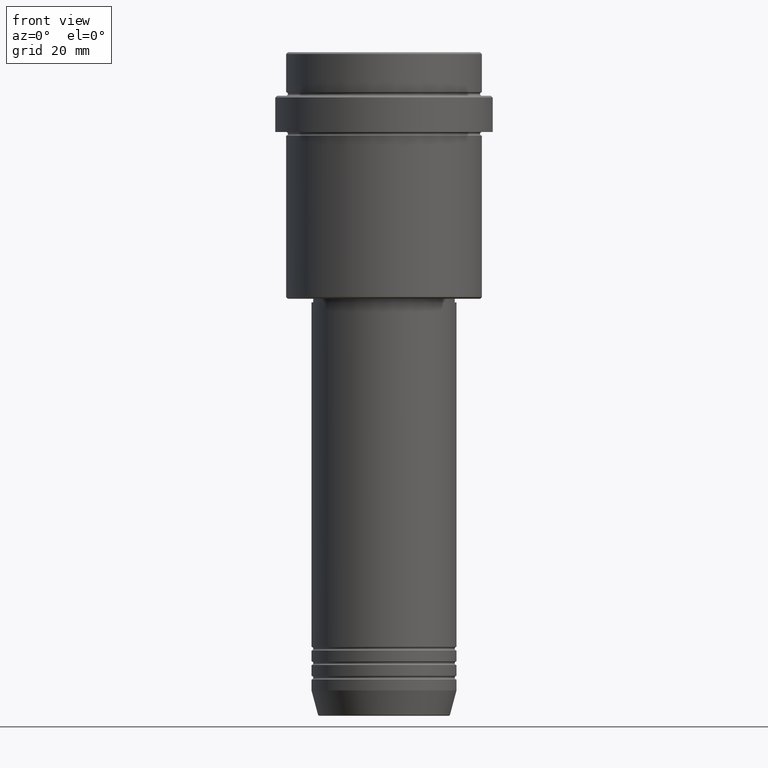
[diagram: clean part render]
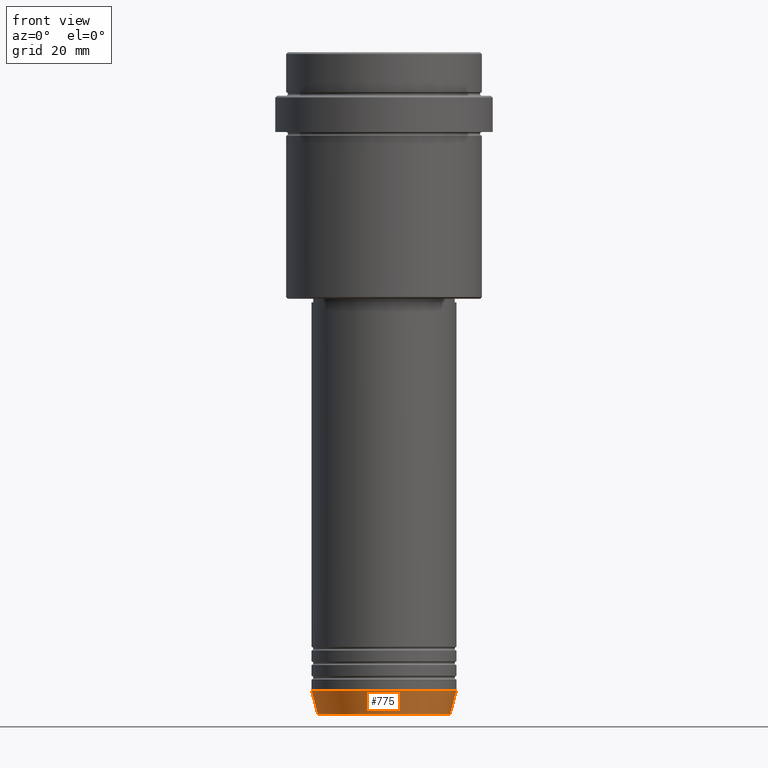
[diagram: same view with one face highlighted and labeled with its STEP entity id]
A machine part, front view. The second image highlights one B-rep face of the part: STEP entity #775.
In plain terms, the highlighted conical surface has half-angle 15 deg.
Its self-contained STEP definition (entity closure, byte-faithful):
#4 = ORIENTED_EDGE ( 'NONE', *, *, #1388, .F. ) ;
#151 = CARTESIAN_POINT ( 'NONE',  ( 0.000000000000000000, 0.000000000000000000, -176.0000000000000284 ) ) ;
#160 = EDGE_CURVE ( 'NONE', #414, #1325, #1119, .T. ) ;
#209 = DIRECTION ( 'NONE',  ( 1.000000000000000000, 0.000000000000000000, 0.000000000000000000 ) ) ;
#215 = DIRECTION ( 'NONE',  ( -0.2588190451025213501, 3.169619151431772337E-17, 0.9659258262890680902 ) ) ;
#217 = VECTOR ( 'NONE', #215, 1000.000000000000000 ) ;
#226 = ORIENTED_EDGE ( 'NONE', *, *, #160, .T. ) ;
#248 = AXIS2_PLACEMENT_3D ( 'NONE', #313, #1197, #209 ) ;
#258 = EDGE_LOOP ( 'NONE', ( #922, #369, #226, #4 ) ) ;
#284 = AXIS2_PLACEMENT_3D ( 'NONE', #151, #1039, #622 ) ;
#313 = CARTESIAN_POINT ( 'NONE',  ( 0.000000000000000000, 0.000000000000000000, -182.6294095225512706 ) ) ;
#350 = VERTEX_POINT ( 'NONE', #493 ) ;
#369 = ORIENTED_EDGE ( 'NONE', *, *, #753, .T. ) ;
#405 = VERTEX_POINT ( 'NONE', #1181 ) ;
#414 = VERTEX_POINT ( 'NONE', #1385 ) ;
#422 = CARTESIAN_POINT ( 'NONE',  ( -20.00000000000000000, 2.449293598294706513E-15, -176.0000000000000284 ) ) ;
#440 = DIRECTION ( 'NONE',  ( 1.000000000000000000, 0.000000000000000000, 0.000000000000000000 ) ) ;
#477 = EDGE_CURVE ( 'NONE', #405, #350, #678, .T. ) ;
#493 = CARTESIAN_POINT ( 'NONE',  ( -20.00000000000000000, 2.449293598294706513E-15, -176.0000000000000284 ) ) ;
#544 = CARTESIAN_POINT ( 'NONE',  ( 0.000000000000000000, 0.000000000000000000, -176.0000000000000284 ) ) ;
#557 = CIRCLE ( 'NONE', #762, 20.00000000000000000 ) ;
#564 = CARTESIAN_POINT ( 'NONE',  ( 20.00000000000000000, 0.000000000000000000, -176.0000000000000284 ) ) ;
#622 = DIRECTION ( 'NONE',  ( 1.000000000000000000, 0.000000000000000000, 0.000000000000000000 ) ) ;
#678 = LINE ( 'NONE', #422, #217 ) ;
#684 = VECTOR ( 'NONE', #1009, 1000.000000000000000 ) ;
#714 = FACE_OUTER_BOUND ( 'NONE', #258, .T. ) ;
#753 = EDGE_CURVE ( 'NONE', #405, #414, #870, .T. ) ;
#762 = AXIS2_PLACEMENT_3D ( 'NONE', #544, #990, #440 ) ;
#775 = ADVANCED_FACE ( 'NONE', ( #714 ), #913, .T. ) ;
#870 = CIRCLE ( 'NONE', #248, 18.22365507213720193 ) ;
#913 = CONICAL_SURFACE ( 'NONE', #284, 20.00000000000000000, 0.2617993877991500740 ) ;
#922 = ORIENTED_EDGE ( 'NONE', *, *, #477, .F. ) ;
#924 = CARTESIAN_POINT ( 'NONE',  ( 20.00000000000000000, 0.000000000000000000, -176.0000000000000284 ) ) ;
#990 = DIRECTION ( 'NONE',  ( -0.000000000000000000, -0.000000000000000000, 1.000000000000000000 ) ) ;
#1009 = DIRECTION ( 'NONE',  ( 0.2588190451025213501, 0.000000000000000000, 0.9659258262890680902 ) ) ;
#1039 = DIRECTION ( 'NONE',  ( -0.000000000000000000, -0.000000000000000000, 1.000000000000000000 ) ) ;
#1119 = LINE ( 'NONE', #564, #684 ) ;
#1181 = CARTESIAN_POINT ( 'NONE',  ( -18.22365507213720193, 2.340523841790265507E-15, -182.6294095225512706 ) ) ;
#1197 = DIRECTION ( 'NONE',  ( -0.000000000000000000, -0.000000000000000000, 1.000000000000000000 ) ) ;
#1325 = VERTEX_POINT ( 'NONE', #924 ) ;
#1385 = CARTESIAN_POINT ( 'NONE',  ( 18.22365507213720193, 0.000000000000000000, -182.6294095225512706 ) ) ;
#1388 = EDGE_CURVE ( 'NONE', #350, #1325, #557, .T. ) ;